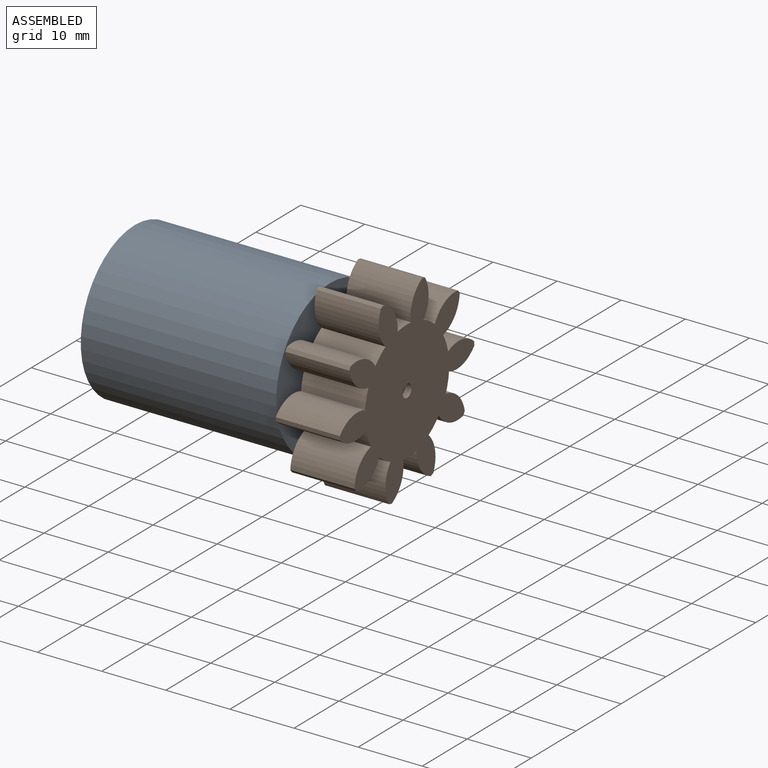
[diagram: assembled view]
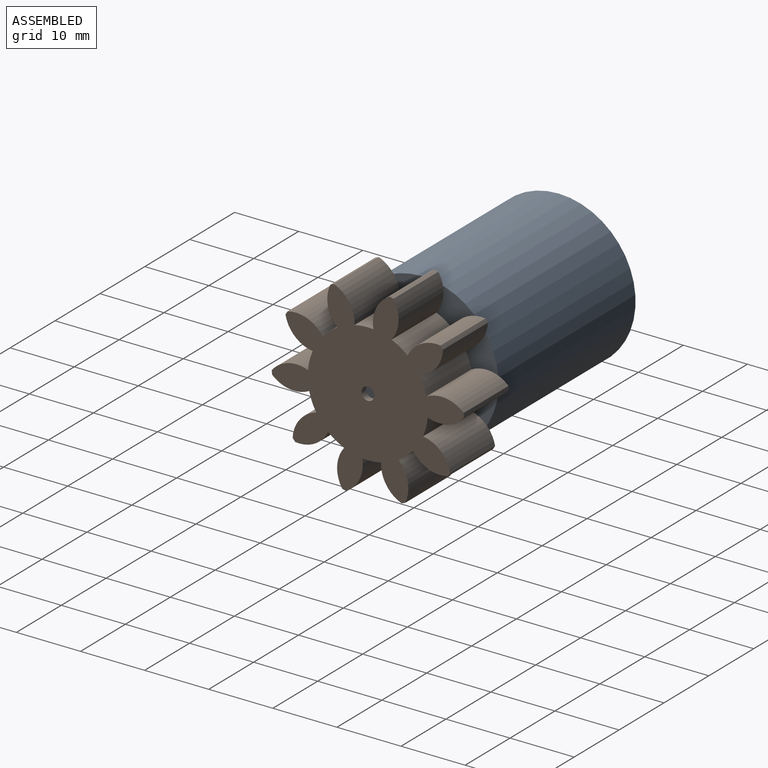
[diagram: assembled view, second angle]
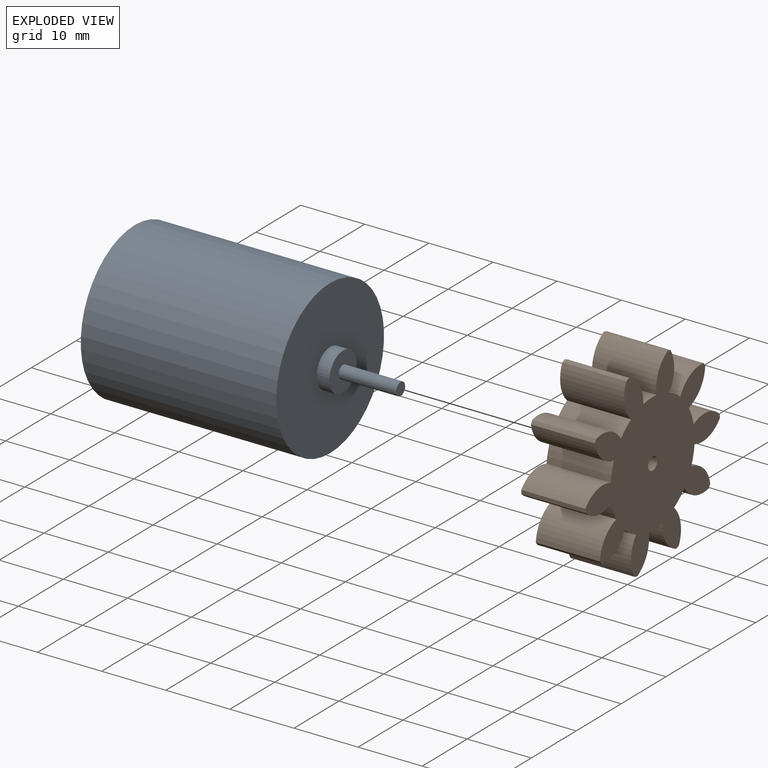
[diagram: exploded view]
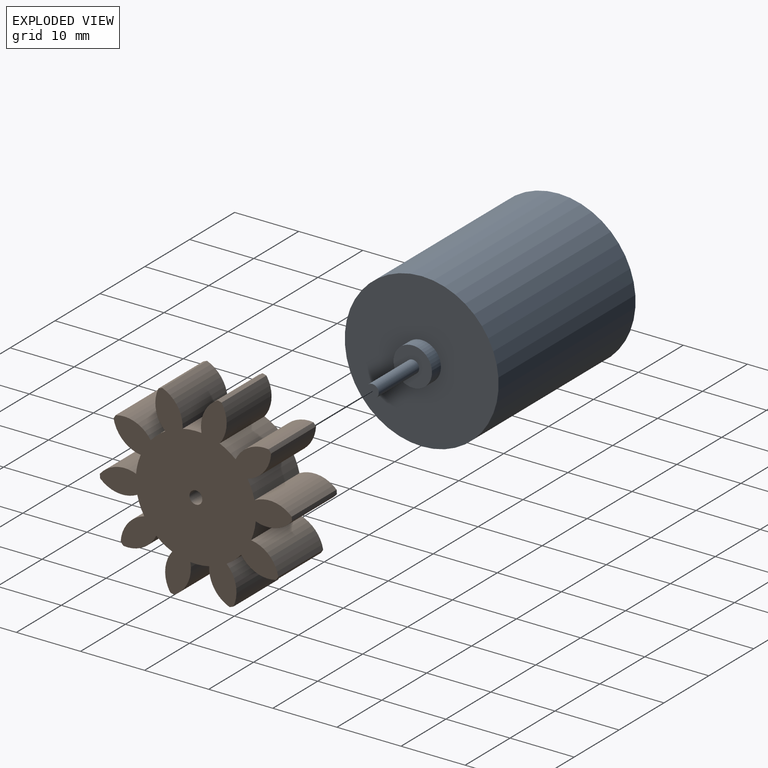
[diagram: exploded view, second angle]
ASSEMBLY  parts=2 mates=2
PART A: 11 faces, bbox 44.5x24x24 mm
  f0: cylinder r=12mm len=30.5mm, axis (-1,0,0), area 2299.6mm2, adj f1,f2
  f1: plane 24x24mm, normal (1,0,0), area 424.1mm2, adj f0,f5
  f2: plane 24x24mm, normal (-1,0,0), area 395.6mm2, adj f0,f3
  f3: cylinder r=4.25mm len=8.5mm, axis (1,0,0), area 53.4mm2, adj f2,f4
  f4: plane 8.5x8.5mm, normal (-1,0,0), area 53.6mm2, adj f3,f9
  f5: cylinder r=3mm len=6mm, axis (-1,0,0), area 37.7mm2, adj f1,f6
  f6: plane 6x6mm, normal (1,0,0), area 25.1mm2, adj f5,f7
  f7: cylinder r=1mm len=9mm, axis (-1,0,0), area 56.5mm2, adj f6,f8
  f8: plane 2x2mm, normal (1,0,0), area 3.1mm2, adj f7
  f9: cylinder r=1mm len=2mm, axis (1,0,0), area 6.3mm2, adj f4,f10
  f10: plane 2x2mm, normal (-1,0,0), area 3.1mm2, adj f9
PART B: 43 faces, bbox 10x28.7x30 mm
  f0: cylinder r=5mm len=10mm, axis (-1,0,0), area 62.5mm2, adj f1,f39,f40,f41
  f1: cylinder r=15mm len=10mm, axis (-1,0,0), area 6.3mm2, adj f0,f2,f40,f41
  f2: cylinder r=5mm len=10mm, axis (-1,0,0), area 62.5mm2, adj f1,f3,f40,f41
  f3: cylinder r=9.37mm len=10mm, axis (-1,0,0), area 29.5mm2, adj f2,f4,f40,f41
  f4: cylinder r=5mm len=10mm, axis (-1,0,0), area 62.5mm2, adj f3,f5,f40,f41
  f5: cylinder r=15mm len=10mm, axis (-1,0,0), area 6.3mm2, adj f4,f6,f40,f41
  f6: cylinder r=5mm len=10mm, axis (-1,0,0), area 62.5mm2, adj f5,f7,f40,f41
  f7: cylinder r=9.37mm len=10mm, axis (-1,0,0), area 29.5mm2, adj f6,f8,f40,f41
  f8: cylinder r=5mm len=10mm, axis (-1,0,0), area 62.5mm2, adj f7,f9,f40,f41
  f9: cylinder r=15mm len=10mm, axis (-1,0,0), area 6.3mm2, adj f8,f10,f40,f41
  f10: cylinder r=5mm len=10mm, axis (-1,0,0), area 62.5mm2, adj f9,f11,f40,f41
  f11: cylinder r=9.37mm len=10mm, axis (-1,0,0), area 29.5mm2, adj f10,f12,f40,f41
  f12: cylinder r=5mm len=10mm, axis (-1,0,0), area 62.5mm2, adj f11,f13,f40,f41
  f13: cylinder r=15mm len=10mm, axis (-1,0,0), area 6.3mm2, adj f12,f14,f40,f41
  f14: cylinder r=5mm len=10mm, axis (-1,0,0), area 62.5mm2, adj f13,f15,f40,f41
  f15: cylinder r=9.37mm len=10mm, axis (-1,0,0), area 29.5mm2, adj f14,f16,f40,f41
  f16: cylinder r=5mm len=10mm, axis (-1,0,0), area 62.5mm2, adj f15,f17,f40,f41
  f17: cylinder r=15mm len=10mm, axis (-1,0,0), area 6.3mm2, adj f16,f18,f40,f41
  f18: cylinder r=5mm len=10mm, axis (-1,0,0), area 62.5mm2, adj f17,f19,f40,f41
  f19: cylinder r=9.37mm len=10mm, axis (-1,0,0), area 29.5mm2, adj f18,f20,f40,f41
  f20: cylinder r=5mm len=10mm, axis (-1,0,0), area 62.5mm2, adj f19,f21,f40,f41
  f21: cylinder r=15mm len=10mm, axis (-1,0,0), area 6.3mm2, adj f20,f22,f40,f41
  f22: cylinder r=5mm len=10mm, axis (-1,0,0), area 62.5mm2, adj f21,f23,f40,f41
  f23: cylinder r=9.37mm len=10mm, axis (-1,0,0), area 29.5mm2, adj f22,f24,f40,f41
  f24: cylinder r=5mm len=10mm, axis (-1,0,0), area 62.5mm2, adj f23,f25,f40,f41
  f25: cylinder r=15mm len=10mm, axis (-1,0,0), area 6.3mm2, adj f24,f26,f40,f41
  f26: cylinder r=5mm len=10mm, axis (-1,0,0), area 62.5mm2, adj f25,f27,f40,f41
  f27: cylinder r=9.37mm len=10mm, axis (-1,0,0), area 29.5mm2, adj f26,f28,f40,f41
  f28: cylinder r=5mm len=10mm, axis (-1,0,0), area 62.5mm2, adj f27,f29,f40,f41
  f29: cylinder r=15mm len=10mm, axis (-1,0,0), area 6.3mm2, adj f28,f30,f40,f41
  f30: cylinder r=5mm len=10mm, axis (-1,0,0), area 62.5mm2, adj f29,f31,f40,f41
  f31: cylinder r=9.37mm len=10mm, axis (-1,0,0), area 29.5mm2, adj f30,f32,f40,f41
  f32: cylinder r=5mm len=10mm, axis (-1,0,0), area 62.5mm2, adj f31,f33,f40,f41
  f33: cylinder r=15mm len=10mm, axis (-1,0,0), area 6.3mm2, adj f32,f34,f40,f41
  f34: cylinder r=5mm len=10mm, axis (-1,0,0), area 62.5mm2, adj f33,f35,f40,f41
  f35: cylinder r=9.37mm len=10mm, axis (-1,0,0), area 29.5mm2, adj f34,f36,f40,f41
  f36: cylinder r=5mm len=10mm, axis (-1,0,0), area 62.5mm2, adj f35,f37,f40,f41
  f37: cylinder r=15mm len=10mm, axis (-1,0,0), area 6.3mm2, adj f36,f38,f40,f41
  f38: cylinder r=5mm len=10mm, axis (-1,0,0), area 62.5mm2, adj f37,f39,f40,f41
  f39: cylinder r=9.37mm len=10mm, axis (-1,0,0), area 29.5mm2, adj f0,f38,f40,f41
  f40: plane 30x28.72mm, normal (1,0,0), area 447.8mm2, adj f0,f1,f2,f3,f4,f5,f6,f7
  f41: plane 30x28.72mm, normal (-1,0,0), area 447.8mm2, adj f0,f1,f2,f3,f4,f5,f6,f7
  f42: cylinder r=1mm len=10mm, axis (1,0,0), area 62.8mm2, adj f40,f41
PLACE A t=(-0.05,14.53,5.16)mm fixed
PLACE B rot(axis=(1,0,0),21.7deg) t=(32.45,14.53,5.16)mm
MATE planar B.f41 <-> A.f5  axis (-1,0,0) through (32.45,22.58,9.96)mm
MATE cylindrical B.f42 <-> A.f7  axis (1,0,0) through (42.45,14.53,5.16)mm
